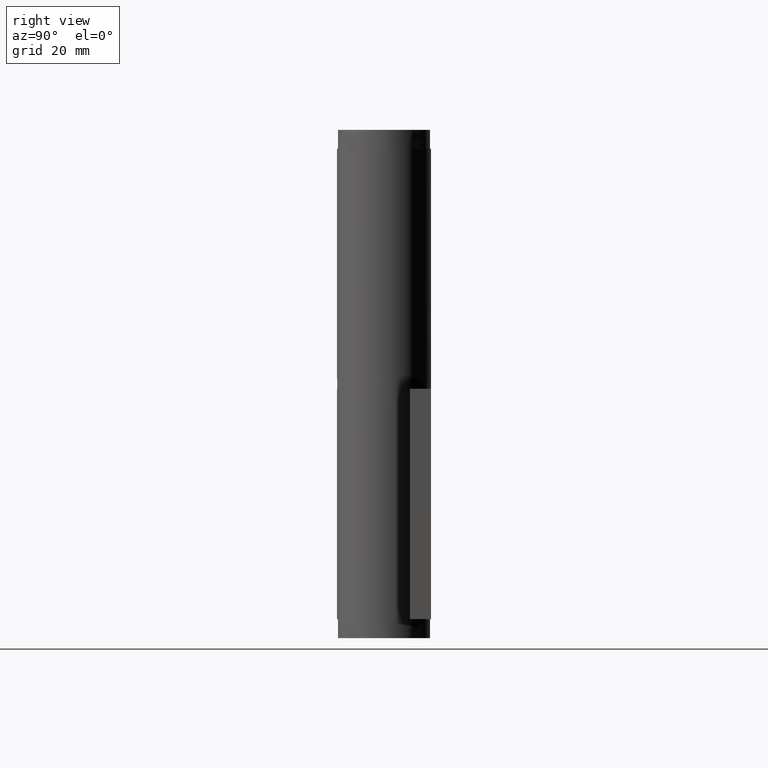
[diagram: clean part render]
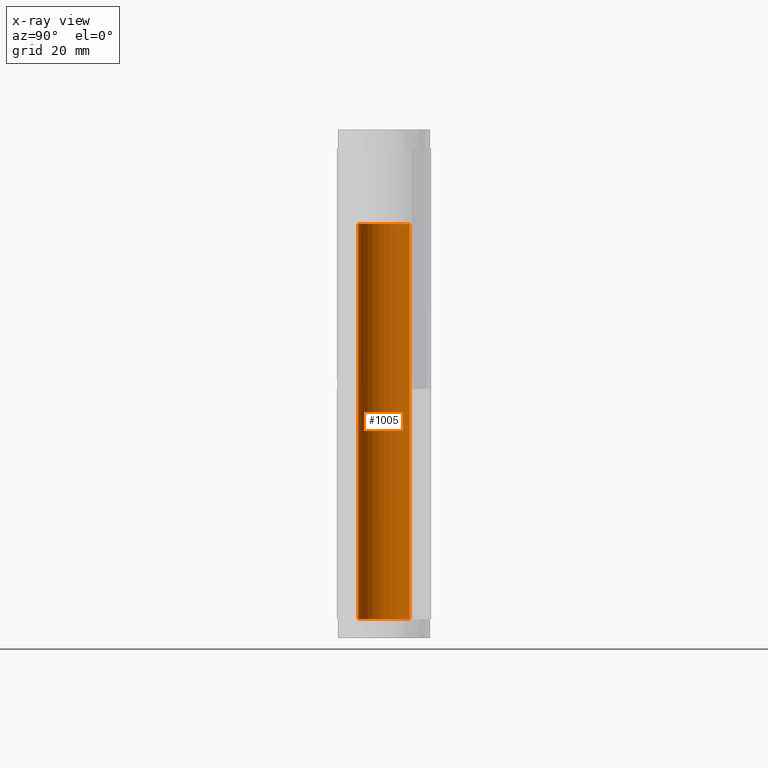
[diagram: x-ray — body ghosted, one internal face saturated and labeled with its STEP entity id]
A machine part, right view, then the same camera in x-ray: the body is ghosted and one INTERNAL B-rep face — a face not visible from any outside direction — is saturated and labeled: STEP entity #1005.
In plain terms, the highlighted face is a freeform B-spline surface patch.
Its self-contained STEP definition (entity closure, byte-faithful):
#842=CARTESIAN_POINT('',(-0.649188290698703,5.461552394989880,4.543085E-015));
#843=VERTEX_POINT('',#842);
#861=CARTESIAN_POINT('',(-0.649188290698702,5.461552394989880,84.0));
#862=VERTEX_POINT('',#861);
#863=CARTESIAN_POINT('',(-0.649188290698702,5.461552394989880,84.0));
#864=CARTESIAN_POINT('',(-0.649188290698703,5.461552394989880,4.543085E-015));
#865=QUASI_UNIFORM_CURVE('',1,(#863,#864),.UNSPECIFIED.,.F.,.U.);
#866=EDGE_CURVE('',#862,#843,#865,.T.);
#885=CARTESIAN_POINT('',(0.335766967579933,-5.489741391311814,84.0));
#886=VERTEX_POINT('',#885);
#900=CARTESIAN_POINT('',(0.335766967579931,-5.489741391311814,4.440892E-015));
#901=VERTEX_POINT('',#900);
#902=CARTESIAN_POINT('',(0.335766967579933,-5.489741391311814,84.0));
#903=CARTESIAN_POINT('',(0.335766967579931,-5.489741391311814,4.440892E-015));
#904=QUASI_UNIFORM_CURVE('',1,(#902,#903),.UNSPECIFIED.,.F.,.U.);
#905=EDGE_CURVE('',#886,#901,#904,.T.);
#923=CARTESIAN_POINT('',(0.335766967441713,-5.489741391320267,86.100000000000023));
#924=CARTESIAN_POINT('',(-5.153974423878553,-5.825508358761980,86.100000000000023));
#925=CARTESIAN_POINT('',(-5.489741391320267,-0.335766967441713,86.100000000000023));
#926=CARTESIAN_POINT('',(-5.806824082028901,4.848489199617255,86.100000000000009));
#927=CARTESIAN_POINT('',(-0.649188290612172,5.461552395000165,86.100000000000037));
#928=CARTESIAN_POINT('',(0.335766967441713,-5.489741391320267,-2.152500000000003));
#929=CARTESIAN_POINT('',(-5.153974423878553,-5.825508358761980,-2.152500000000003));
#930=CARTESIAN_POINT('',(-5.489741391320267,-0.335766967441713,-2.152500000000003));
#931=CARTESIAN_POINT('',(-5.806824082028901,4.848489199617255,-2.152500000000004));
#932=CARTESIAN_POINT('',(-0.649188290612172,5.461552395000165,-2.152500000000004));
#940=(BOUNDED_SURFACE()B_SPLINE_SURFACE(2,1,((#923,#928),(#924,#929),(#925,#930),(#926,#931),(#927,#932)),.UNSPECIFIED.,.F.,.F.,.U.)B_SPLINE_SURFACE_WITH_KNOTS((3,2,3),(2,2),(0.0,9.112698372208092,17.860888809527861),(0.0,88.252500000000040),.UNSPECIFIED.)GEOMETRIC_REPRESENTATION_ITEM()RATIONAL_B_SPLINE_SURFACE(((1.0,1.0),(0.707106781186548,0.707106781186548),(1.0,1.0),(0.718822509939086,0.718822509939086),(0.977505800795127,0.977505800795127)))REPRESENTATION_ITEM('')SURFACE());
#941=CARTESIAN_POINT('',(-5.500000000000000,0.0,0.0));
#942=VERTEX_POINT('',#941);
#943=CARTESIAN_POINT('',(-5.500000000000000,0.0,0.0));
#944=CARTESIAN_POINT('',(-5.500000000000000,4.884959892576642,0.0));
#945=CARTESIAN_POINT('',(-0.649188290698703,5.461552394989880,4.543085E-015));
#953=(BOUNDED_CURVE()B_SPLINE_CURVE(2,(#943,#944,#945),.UNSPECIFIED.,.F.,.U.)B_SPLINE_CURVE_WITH_KNOTS((3,3),(0.0,0.229562473510289),.UNSPECIFIED.)CURVE()GEOMETRIC_REPRESENTATION_ITEM()RATIONAL_B_SPLINE_CURVE((1.0,0.731050832859174,0.956026754177389))REPRESENTATION_ITEM(''));
#954=EDGE_CURVE('',#942,#843,#953,.T.);
#955=ORIENTED_EDGE('',*,*,#954,.F.);
#956=CARTESIAN_POINT('',(0.335766967579931,-5.489741391311814,4.440892E-015));
#957=CARTESIAN_POINT('',(0.168040198280844,-5.500000000000000,0.0));
#958=CARTESIAN_POINT('',(0.0,-5.500000000000000,0.0));
#959=CARTESIAN_POINT('',(-5.500000000000001,-5.500000000000001,0.0));
#960=CARTESIAN_POINT('',(-5.500000000000000,0.0,0.0));
#968=(BOUNDED_CURVE()B_SPLINE_CURVE(2,(#956,#957,#958,#959,#960),.UNSPECIFIED.,.F.,.U.)B_SPLINE_CURVE_WITH_KNOTS((3,2,3),(0.739332962233280,0.750000000000000,1.0),.UNSPECIFIED.)CURVE()GEOMETRIC_REPRESENTATION_ITEM()RATIONAL_B_SPLINE_CURVE((0.976072041654581,0.987502787893203,1.0,0.707106781186548,1.0))REPRESENTATION_ITEM(''));
#969=EDGE_CURVE('',#901,#942,#968,.T.);
#970=ORIENTED_EDGE('',*,*,#969,.F.);
#971=ORIENTED_EDGE('',*,*,#905,.F.);
#972=CARTESIAN_POINT('',(-5.500000000000000,0.0,84.0));
#973=VERTEX_POINT('',#972);
#974=CARTESIAN_POINT('',(0.335766967579933,-5.489741391311814,84.0));
#975=CARTESIAN_POINT('',(0.168040198280846,-5.499999999999999,84.0));
#976=CARTESIAN_POINT('',(0.0,-5.500000000000000,84.0));
#977=CARTESIAN_POINT('',(-5.500000000000001,-5.500000000000001,84.000000000000014));
#978=CARTESIAN_POINT('',(-5.500000000000000,0.0,84.0));
#986=(BOUNDED_CURVE()B_SPLINE_CURVE(2,(#974,#975,#976,#977,#978),.UNSPECIFIED.,.F.,.U.)B_SPLINE_CURVE_WITH_KNOTS((3,2,3),(0.739332962233280,0.750000000000000,1.0),.UNSPECIFIED.)CURVE()GEOMETRIC_REPRESENTATION_ITEM()RATIONAL_B_SPLINE_CURVE((0.976072041654580,0.987502787893202,1.0,0.707106781186548,1.0))REPRESENTATION_ITEM(''));
#987=EDGE_CURVE('',#886,#973,#986,.T.);
#988=ORIENTED_EDGE('',*,*,#987,.T.);
#989=CARTESIAN_POINT('',(-5.500000000000000,0.0,84.0));
#990=CARTESIAN_POINT('',(-5.500000000000001,4.884959892576644,84.000000000000014));
#991=CARTESIAN_POINT('',(-0.649188290698702,5.461552394989880,84.0));
#999=(BOUNDED_CURVE()B_SPLINE_CURVE(2,(#989,#990,#991),.UNSPECIFIED.,.F.,.U.)B_SPLINE_CURVE_WITH_KNOTS((3,3),(0.0,0.229562473510289),.UNSPECIFIED.)CURVE()GEOMETRIC_REPRESENTATION_ITEM()RATIONAL_B_SPLINE_CURVE((1.0,0.731050832859174,0.956026754177389))REPRESENTATION_ITEM(''));
#1000=EDGE_CURVE('',#973,#862,#999,.T.);
#1001=ORIENTED_EDGE('',*,*,#1000,.T.);
#1002=ORIENTED_EDGE('',*,*,#866,.T.);
#1003=EDGE_LOOP('',(#955,#970,#971,#988,#1001,#1002));
#1004=FACE_OUTER_BOUND('',#1003,.T.);
#1005=ADVANCED_FACE('',(#1004),#940,.T.);